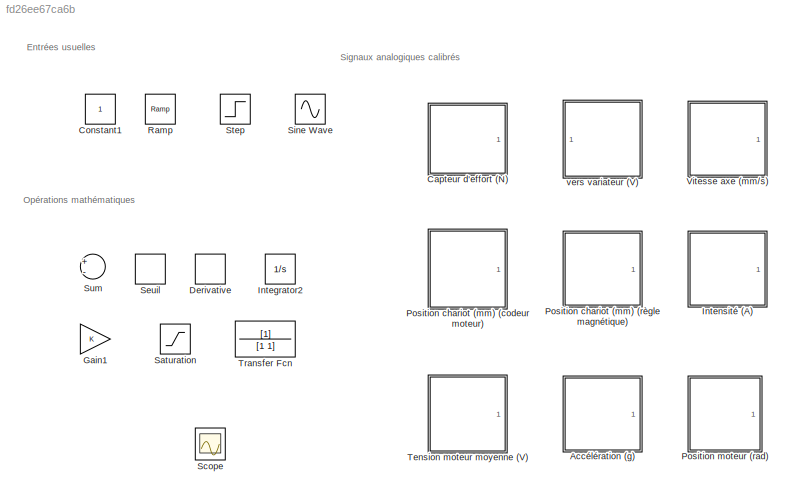
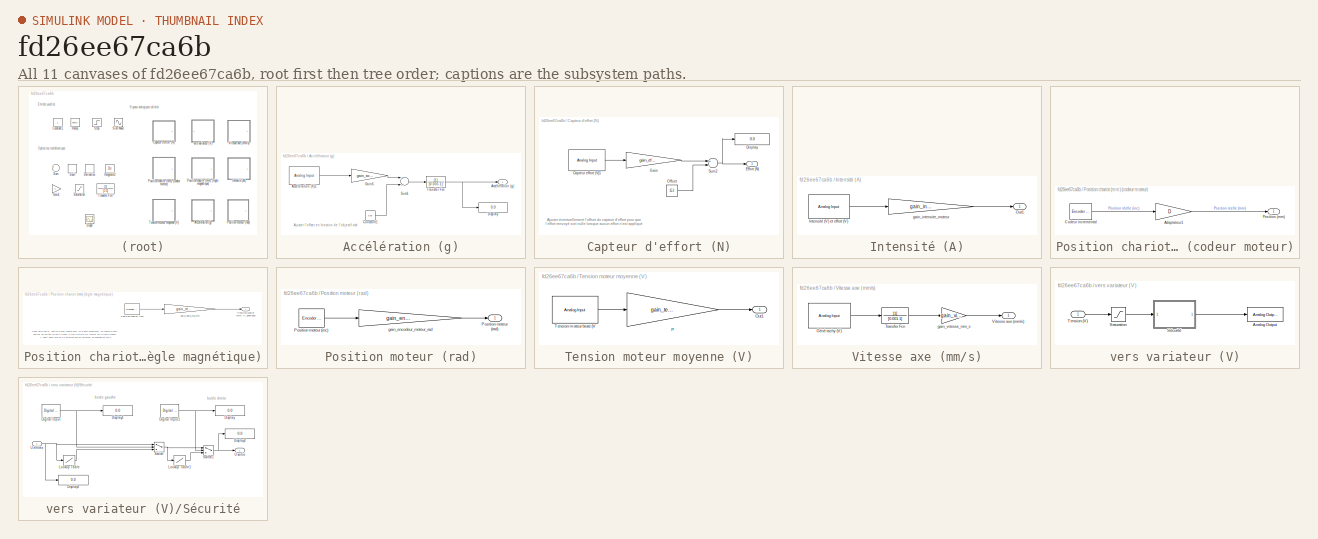
[diagram: thumbnail index - all 11 canvases of the model, root first then tree order]
MODEL slx_fd26ee67ca6b
KIND model
CONFIG AbsTol = auto
CONFIG EnableMultiTasking = on
CONFIG FixedStep = auto
CONFIG MaxStep = auto
CONFIG MinStep = auto
CONFIG RelTol = 1e-3
CONFIG SampleTimeConstraint = Unconstrained
CONFIG Solver = ode45
CONFIG SolverName = ode45
CONFIG StartTime = 0.0
CONFIG StopTime = 10.0
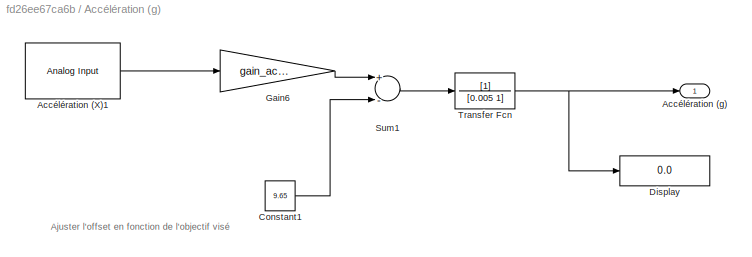
BLOCK [SubSystem] Accélération (g)
  Ports = [0, 1]
  RequestExecContextInheritance = off
  Variant = off
BLOCK [Reference] Accélération (g)/Accélération (X)1  REF=sldrtlib/Analog Input
  AttributesFormatString = National Instruments\nPCIe-6321 [auto]
  Ports = [0, 1]
  SourceBlock = sldrtlib/Analog Input
  SourceType = Simulink Desktop Real-Time Analog Input
BLOCK [Outport] Accélération (g)/Accélération (g)
  IconDisplay = Port number
BLOCK [Constant] Accélération (g)/Constant1
  SampleTime = dt
  Value = 9.65
BLOCK [Display] Accélération (g)/Display
  Decimation = 1
  Ports = [1]
BLOCK [Gain] Accélération (g)/Gain6
  Gain = gain_accelero
  OutDataTypeStr = Inherit: Inherit via internal rule
  ParamDataTypeStr = Inherit: Inherit via internal rule
  SaturateOnIntegerOverflow = off
BLOCK [Sum] Accélération (g)/Sum1
  InputSameDT = off
  Inputs = +-
  OutDataTypeStr = Inherit: Inherit via internal rule
  Ports = [2, 1]
  SaturateOnIntegerOverflow = off
BLOCK [TransferFcn] Accélération (g)/Transfer Fcn
  Denominator = [0.005 1]
BLOCK [SubSystem] Capteur d'effort (N)
  Ports = [0, 1]
  RequestExecContextInheritance = off
  Variant = off
BLOCK [Reference] Capteur d'effort (N)/Capteur effort (V)1  REF=sldrtlib/Analog Input
  AttributesFormatString = National Instruments\nPCIe-6321 [auto]
  Ports = [0, 1]
  SourceBlock = sldrtlib/Analog Input
  SourceType = Simulink Desktop Real-Time Analog Input
BLOCK [Display] Capteur d'effort (N)/Display
  Decimation = 1
  Ports = [1]
BLOCK [Outport] Capteur d'effort (N)/Effort (N)
  IconDisplay = Port number
BLOCK [Gain] Capteur d'effort (N)/Gain
  Gain = gain_effort_ext
  OutDataTypeStr = Inherit: Inherit via internal rule
  ParamDataTypeStr = Inherit: Inherit via internal rule
  SaturateOnIntegerOverflow = off
BLOCK [Constant] Capteur d'effort (N)/Offset
  Value = 15.3
BLOCK [Sum] Capteur d'effort (N)/Sum2
  InputSameDT = off
  Inputs = +-
  OutDataTypeStr = Inherit: Inherit via internal rule
  Ports = [2, 1]
  SaturateOnIntegerOverflow = off
BLOCK [Constant] Constant1
  SampleTime = dt
BLOCK [Derivative] Derivative
BLOCK [Gain] Gain1
  OutDataTypeStr = Inherit: Inherit via internal rule
  ParamDataTypeStr = Inherit: Inherit via internal rule
  SaturateOnIntegerOverflow = off
BLOCK [Integrator] Integrator2
  Ports = [1, 1]
BLOCK [SubSystem] Intensité (A)
  Ports = [0, 1]
  RequestExecContextInheritance = off
  Variant = off
BLOCK [Reference] Intensité (A)/Intensité  (V) et effort (V)  REF=sldrtlib/Analog Input
  AttributesFormatString = National Instruments\nPCIe-6321 [auto]
  Ports = [0, 1]
  SourceBlock = sldrtlib/Analog Input
  SourceType = Simulink Desktop Real-Time Analog Input
BLOCK [Outport] Intensité (A)/Out1
  IconDisplay = Port number
BLOCK [Gain] Intensité (A)/gain_intensite_moteur
  Gain = gain_intensite_moteur
  OutDataTypeStr = Inherit: Inherit via internal rule
  ParamDataTypeStr = Inherit: Inherit via internal rule
  SaturateOnIntegerOverflow = off
BLOCK [SubSystem] Position chariot (mm) (codeur moteur)
  Ports = [0, 1]
  RequestExecContextInheritance = off
  Variant = off
BLOCK [Gain] Position chariot (mm) (codeur moteur)/Adaptateur1
  Gain = D
  OutDataTypeStr = Inherit: Inherit via internal rule
  ParamDataTypeStr = Inherit: Inherit via internal rule
  SaturateOnIntegerOverflow = off
BLOCK [Reference] Position chariot (mm) (codeur moteur)/Codeur incremental  REF=sldrtlib/Encoder Input
  AttributesFormatString = National Instruments\nPCIe-6321 [auto]
  Ports = [0, 1]
  SourceBlock = sldrtlib/Encoder Input
  SourceType = Simulink Desktop Real-Time Encoder Input
BLOCK [Outport] Position chariot (mm) (codeur moteur)/Position (mm)
  IconDisplay = Port number
BLOCK [SubSystem] Position chariot (mm) (règle magnétique)
  Ports = [0, 1]
  RequestExecContextInheritance = off
  Variant = off
BLOCK [Reference] Position chariot (mm) (règle magnétique)/Position chariot (inc)  REF=sldrtlib/Encoder Input
  AttributesFormatString = National Instruments\nPCIe-6321 [auto]
  Ports = [0, 1]
  SourceBlock = sldrtlib/Encoder Input
  SourceType = Simulink Desktop Real-Time Encoder Input
BLOCK [Outport] Position chariot (mm) (règle magnétique)/Position chariot (mm) (règle magnétique)
  IconDisplay = Port number
BLOCK [Gain] Position chariot (mm) (règle magnétique)/gain_regle_mg_mm
  Gain = gain_regle_mg
  OutDataTypeStr = Inherit: Inherit via internal rule
  ParamDataTypeStr = Inherit: Inherit via internal rule
  SaturateOnIntegerOverflow = off
BLOCK [SubSystem] Position moteur (rad)
  Ports = [0, 1]
  RequestExecContextInheritance = off
  Variant = off
BLOCK [Reference] Position moteur (rad)/Position moteur (inc)  REF=sldrtlib/Encoder Input
  AttributesFormatString = National Instruments\nPCIe-6321 [auto]
  Ports = [0, 1]
  SourceBlock = sldrtlib/Encoder Input
  SourceType = Simulink Desktop Real-Time Encoder Input
BLOCK [Outport] Position moteur (rad)/Position moteur (rad)
  IconDisplay = Port number
BLOCK [Gain] Position moteur (rad)/gain_encodeur_moteur_rad
  Gain = gain_encodeur_moteur_rad
  OutDataTypeStr = Inherit: Inherit via internal rule
  ParamDataTypeStr = Inherit: Inherit via internal rule
  SaturateOnIntegerOverflow = off
BLOCK [Reference] Ramp  REF=simulink/Sources/Ramp
  Ports = [0, 1]
  SourceBlock = simulink/Sources/Ramp
  SourceType = Ramp
BLOCK [Saturate] Saturation
  InputPortMap = u0
  Ports = [1, 1]
BLOCK [Scope] Scope
  NumInputPorts = 1
  Ports = [1]
  ScopeSpecificationString = C++SS(StrPVP('SaveName','ScopeData'))
BLOCK [DeadZone] Seuil
BLOCK [Sin] Sine Wave
  Amplitude = 5
  Frequency = 2*pi
  Ports = [0, 1]
BLOCK [Step] Step
  SampleTime = 0
BLOCK [Sum] Sum
  InputSameDT = off
  Inputs = +-
  OutDataTypeStr = Inherit: Inherit via internal rule
  Ports = [2, 1]
  SaturateOnIntegerOverflow = off
BLOCK [SubSystem] Tension moteur moyenne (V)
  Ports = [0, 1]
  RequestExecContextInheritance = off
  Variant = off
BLOCK [Outport] Tension moteur moyenne (V)/Out1
  IconDisplay = Port number
BLOCK [Gain] Tension moteur moyenne (V)/P
  Gain = gain_tension_moteur
  OutDataTypeStr = Inherit: Inherit via internal rule
  ParamDataTypeStr = Inherit: Inherit via internal rule
  SaturateOnIntegerOverflow = off
BLOCK [Reference] Tension moteur moyenne (V)/Tension moteur brute (V   REF=sldrtlib/Analog Input
  AttributesFormatString = National Instruments\nPCIe-6321 [auto]
  Ports = [0, 1]
  SourceBlock = sldrtlib/Analog Input
  SourceType = Simulink Desktop Real-Time Analog Input
BLOCK [TransferFcn] Transfer Fcn
  Denominator = [1 1]
BLOCK [SubSystem] Vitesse axe (mm//s)
  Ports = [0, 1]
  RequestExecContextInheritance = off
  Variant = off
BLOCK [Reference] Vitesse axe (mm//s)/Géné tachy (V)  REF=sldrtlib/Analog Input
  AttributesFormatString = National Instruments\nPCIe-6321 [auto]
  Ports = [0, 1]
  SourceBlock = sldrtlib/Analog Input
  SourceType = Simulink Desktop Real-Time Analog Input
BLOCK [TransferFcn] Vitesse axe (mm//s)/Transfer Fcn
  Denominator = [0.001 1]
BLOCK [Outport] Vitesse axe (mm//s)/Vitesse axe (mm//s)
  IconDisplay = Port number
BLOCK [Gain] Vitesse axe (mm//s)/gain_vitesse_mm_s
  Gain = gain_vitesse_mm_s
  OutDataTypeStr = Inherit: Inherit via internal rule
  ParamDataTypeStr = Inherit: Inherit via internal rule
  SaturateOnIntegerOverflow = off
BLOCK [SubSystem] vers variateur (V)
  Ports = [1]
  RequestExecContextInheritance = off
  Variant = off
BLOCK [Reference] vers variateur (V)/Analog Output  REF=sldrtlib/Analog Output
  AttributesFormatString = National Instruments\nPCIe-6321 [auto]
  Ports = [1]
  SourceBlock = sldrtlib/Analog Output
  SourceType = Simulink Desktop Real-Time Analog Output
BLOCK [Saturate] vers variateur (V)/Saturation
  InputPortMap = u0
  LowerLimit = -10
  Ports = [1, 1]
  UpperLimit = 10
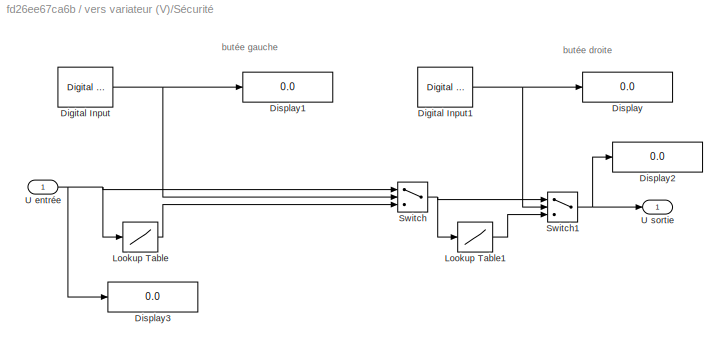
BLOCK [SubSystem] vers variateur (V)/Sécurité
  Ports = [1, 1]
  RequestExecContextInheritance = off
  Variant = off
BLOCK [Reference] vers variateur (V)/Sécurité/Digital Input  REF=sldrtlib/Digital Input
  AttributesFormatString = National Instruments\nPCIe-6321 [auto]
  Ports = [0, 1]
  SourceBlock = sldrtlib/Digital Input
  SourceType = Simulink Desktop Real-Time Digital Input
BLOCK [Reference] vers variateur (V)/Sécurité/Digital Input1  REF=sldrtlib/Digital Input
  AttributesFormatString = National Instruments\nPCIe-6321 [auto]
  Ports = [0, 1]
  SourceBlock = sldrtlib/Digital Input
  SourceType = Simulink Desktop Real-Time Digital Input
BLOCK [Display] vers variateur (V)/Sécurité/Display
  Decimation = 3
  Ports = [1]
BLOCK [Display] vers variateur (V)/Sécurité/Display1
  Decimation = 1
  Ports = [1]
BLOCK [Display] vers variateur (V)/Sécurité/Display2
  Decimation = 3
  Ports = [1]
BLOCK [Display] vers variateur (V)/Sécurité/Display3
  Decimation = 3
  Ports = [1]
BLOCK [Lookup] vers variateur (V)/Sécurité/Lookup Table
  InputValues = [-Vsat 0 Vsat]
  SaturateOnIntegerOverflow = off
  Table = [0 0 Vsat]
BLOCK [Lookup] vers variateur (V)/Sécurité/Lookup Table1
  InputValues = [-Vsat 0 Vsat]
  SaturateOnIntegerOverflow = off
  Table = [-Vsat 0 0]
BLOCK [Switch] vers variateur (V)/Sécurité/Switch
  Criteria = u2 ~= 0
  InputSameDT = off
  SaturateOnIntegerOverflow = off
BLOCK [Switch] vers variateur (V)/Sécurité/Switch1
  Criteria = u2 ~= 0
  InputSameDT = off
  SaturateOnIntegerOverflow = off
BLOCK [Inport] vers variateur (V)/Sécurité/U entrée
  IconDisplay = Port number
BLOCK [Outport] vers variateur (V)/Sécurité/U sortie
  IconDisplay = Port number
BLOCK [Inport] vers variateur (V)/Tension (V)
  IconDisplay = Port number
ANNOTATION (root): Entrées usuelles
ANNOTATION (root): Opérations mathématiques
ANNOTATION (root): Signaux analogiques calibrés
ANNOTATION Accélération (g): Ajuster l'offset en fonction de l'objectif visé
ANNOTATION Capteur d'effort (N): Ajuster éventuellement l'offset du capteur d'effort pour que l'effort renvoyé soit nulle lorsque aucun effort n'est appliqué
ANNOTATION Position chariot (mm) (règle magnétique): Dans cette boite, l'option "reset" ou "none" du champ "Rest input function" permet de valider ou non le canal Z (top 0 situé à mi-course) de la règle magnétique. Il s'agit d'une remise à 0 automatique du compteur au passage du top 0.
ANNOTATION vers variateur (V)/Sécurité: butée droite
ANNOTATION vers variateur (V)/Sécurité: butée gauche
LINE Accélération (g)/Accélération (X)1:1 -> Accélération (g)/Gain6:1
LINE Accélération (g)/Constant1:1 -> Accélération (g)/Sum1:2
LINE Accélération (g)/Gain6:1 -> Accélération (g)/Sum1:1
LINE Accélération (g)/Sum1:1 -> Accélération (g)/Transfer Fcn:1
NET Accélération (g)/Transfer Fcn:1 -> Accélération (g)/Accélération (g):1, Accélération (g)/Display:1
LINE Capteur d'effort (N)/Capteur effort (V)1:1 -> Capteur d'effort (N)/Gain:1
LINE Capteur d'effort (N)/Gain:1 -> Capteur d'effort (N)/Sum2:1
LINE Capteur d'effort (N)/Offset:1 -> Capteur d'effort (N)/Sum2:2
NET Capteur d'effort (N)/Sum2:1 -> Capteur d'effort (N)/Display:1, Capteur d'effort (N)/Effort (N):1
LINE Intensité (A)/Intensité  (V) et effort (V):1 -> Intensité (A)/gain_intensite_moteur:1
LINE Intensité (A)/gain_intensite_moteur:1 -> Intensité (A)/Out1:1
LINE Position chariot (mm) (codeur moteur)/Adaptateur1:1 -> Position chariot (mm) (codeur moteur)/Position (mm):1
LINE Position chariot (mm) (codeur moteur)/Codeur incremental:1 -> Position chariot (mm) (codeur moteur)/Adaptateur1:1
LINE Position chariot (mm) (règle magnétique)/Position chariot (inc):1 -> Position chariot (mm) (règle magnétique)/gain_regle_mg_mm:1
LINE Position chariot (mm) (règle magnétique)/gain_regle_mg_mm:1 -> Position chariot (mm) (règle magnétique)/Position chariot (mm) (règle magnétique):1
LINE Position moteur (rad)/Position moteur (inc):1 -> Position moteur (rad)/gain_encodeur_moteur_rad:1
LINE Position moteur (rad)/gain_encodeur_moteur_rad:1 -> Position moteur (rad)/Position moteur (rad):1
LINE Tension moteur moyenne (V)/P:1 -> Tension moteur moyenne (V)/Out1:1
LINE Tension moteur moyenne (V)/Tension moteur brute (V :1 -> Tension moteur moyenne (V)/P:1
LINE Vitesse axe (mm//s)/Géné tachy (V):1 -> Vitesse axe (mm//s)/Transfer Fcn:1
LINE Vitesse axe (mm//s)/Transfer Fcn:1 -> Vitesse axe (mm//s)/gain_vitesse_mm_s:1
LINE Vitesse axe (mm//s)/gain_vitesse_mm_s:1 -> Vitesse axe (mm//s)/Vitesse axe (mm//s):1
LINE vers variateur (V)/Saturation:1 -> vers variateur (V)/Sécurité:1
NET vers variateur (V)/Sécurité/Digital Input1:1 -> vers variateur (V)/Sécurité/Display:1, vers variateur (V)/Sécurité/Switch1:2
NET vers variateur (V)/Sécurité/Digital Input:1 -> vers variateur (V)/Sécurité/Display1:1, vers variateur (V)/Sécurité/Switch:2
LINE vers variateur (V)/Sécurité/Lookup Table1:1 -> vers variateur (V)/Sécurité/Switch1:3
LINE vers variateur (V)/Sécurité/Lookup Table:1 -> vers variateur (V)/Sécurité/Switch:3
NET vers variateur (V)/Sécurité/Switch1:1 -> vers variateur (V)/Sécurité/Display2:1, vers variateur (V)/Sécurité/U sortie:1
NET vers variateur (V)/Sécurité/Switch:1 -> vers variateur (V)/Sécurité/Lookup Table1:1, vers variateur (V)/Sécurité/Switch1:1
NET vers variateur (V)/Sécurité/U entrée:1 -> vers variateur (V)/Sécurité/Display3:1, vers variateur (V)/Sécurité/Lookup Table:1, vers variateur (V)/Sécurité/Switch:1
LINE vers variateur (V)/Sécurité:1 -> vers variateur (V)/Analog Output:1
LINE vers variateur (V)/Tension (V):1 -> vers variateur (V)/Saturation:1
note: NET lines group one-source signal fan-out (src -> all destinations, sorted); 1:1 wires keep LINE
